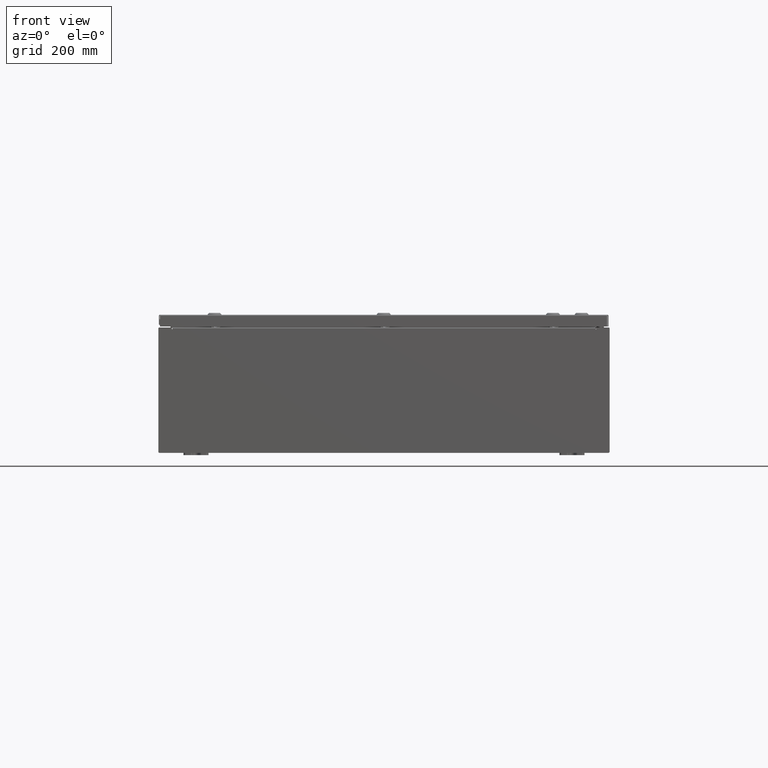
[diagram: clean part render]
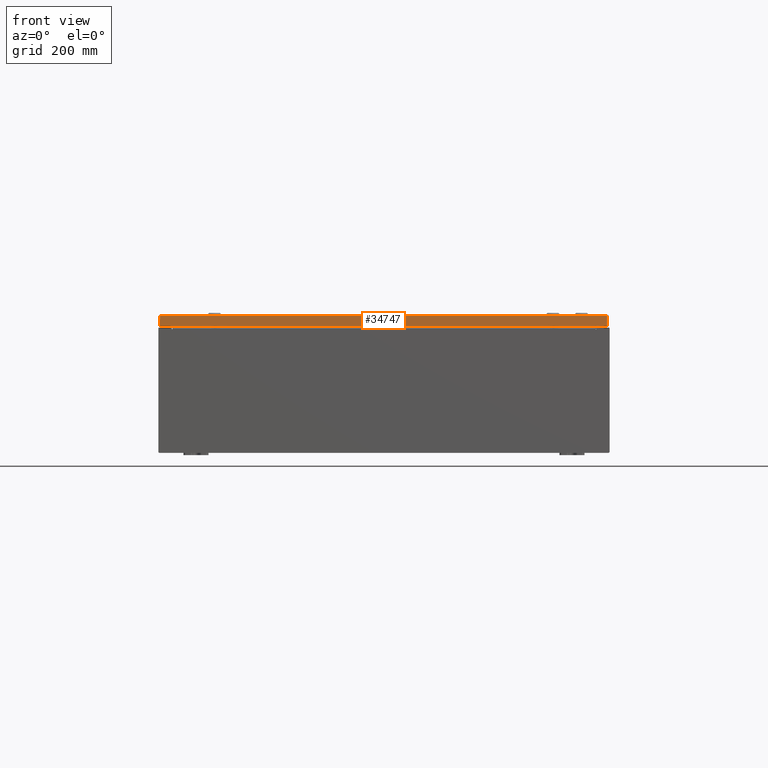
[diagram: same view with one face highlighted and labeled with its STEP entity id]
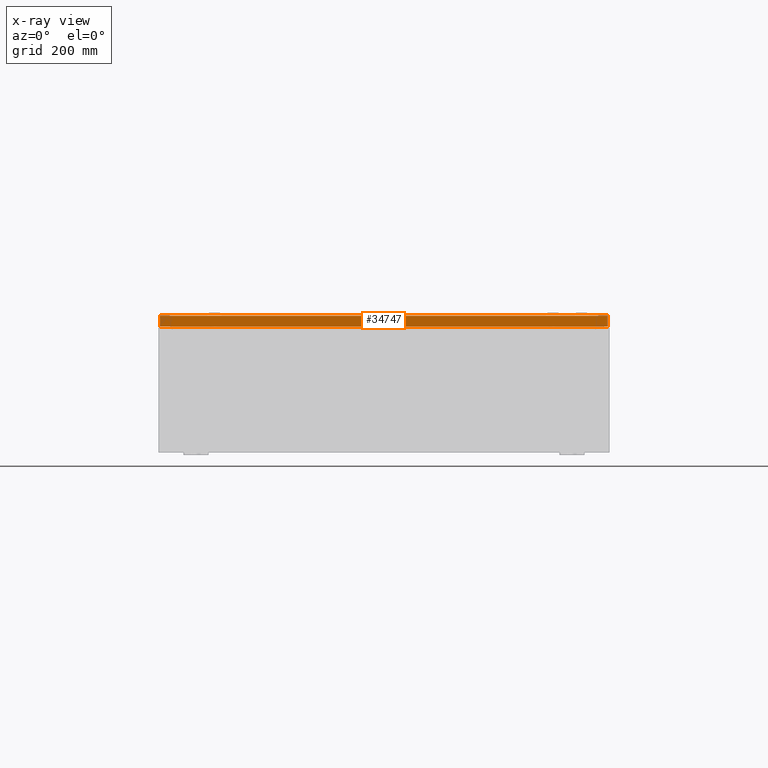
[diagram: x-ray of the same camera — body ghosted, the highlighted face saturated]
A machine part, front view. The second image highlights one B-rep face of the part: STEP entity #34747.
The next image is the same camera in x-ray: the body ghosted, the highlighted face saturated — about 0% of this face is hidden behind the body in this view.
In plain terms, the highlighted planar face has unit normal (-0, 1, -0).
Its self-contained STEP definition (entity closure, byte-faithful):
#3148 = PLANE ( 'NONE',  #30008 ) ;
#6920 = VECTOR ( 'NONE', #13848, 39.37007874015748100 ) ;
#7162 = VERTEX_POINT ( 'NONE', #37571 ) ;
#7636 = LINE ( 'NONE', #24702, #20056 ) ;
#8472 = DIRECTION ( 'NONE',  ( 0.0000000000000000000, 5.064839849203732200E-015, 1.000000000000000000 ) ) ;
#8919 = LINE ( 'NONE', #59382, #63705 ) ;
#10474 = ORIENTED_EDGE ( 'NONE', *, *, #55867, .F. ) ;
#13848 = DIRECTION ( 'NONE',  ( -1.000000000000000000, -8.758115402030108600E-047, 1.218385167906012900E-016 ) ) ;
#17083 = ORIENTED_EDGE ( 'NONE', *, *, #31064, .F. ) ;
#18702 = EDGE_CURVE ( 'NONE', #30866, #7162, #7636, .T. ) ;
#19085 = FACE_OUTER_BOUND ( 'NONE', #24763, .T. ) ;
#20056 = VECTOR ( 'NONE', #30059, 39.37007874015748100 ) ;
#20991 = LINE ( 'NONE', #34956, #6920 ) ;
#23680 = LINE ( 'NONE', #43489, #64381 ) ;
#24702 = CARTESIAN_POINT ( 'NONE',  ( 17.84865786437626400, -20.93750000000000000, -0.07469999999999962800 ) ) ;
#24763 = EDGE_LOOP ( 'NONE', ( #10474, #39938, #17083, #48427 ) ) ;
#30008 = AXIS2_PLACEMENT_3D ( 'NONE', #50663, #40249, #8472 ) ;
#30059 = DIRECTION ( 'NONE',  ( -0.0000000000000000000, -5.064839849203732200E-015, -1.000000000000000000 ) ) ;
#30866 = VERTEX_POINT ( 'NONE', #49128 ) ;
#31064 = EDGE_CURVE ( 'NONE', #7162, #39583, #20991, .T. ) ;
#34747 = ADVANCED_FACE ( 'NONE', ( #19085 ), #3148, .F. ) ;
#34956 = CARTESIAN_POINT ( 'NONE',  ( 17.93749999999999600, -20.93750000000000700, -0.9376999999999997600 ) ) ;
#37571 = CARTESIAN_POINT ( 'NONE',  ( 17.84865786437626400, -20.93750000000000700, -0.9376999999999997600 ) ) ;
#39583 = VERTEX_POINT ( 'NONE', #44733 ) ;
#39938 = ORIENTED_EDGE ( 'NONE', *, *, #53599, .T. ) ;
#40249 = DIRECTION ( 'NONE',  ( -6.170925750089155000E-031, 1.000000000000000000, -5.064839849203732200E-015 ) ) ;
#43489 = CARTESIAN_POINT ( 'NONE',  ( 17.93749999999999600, -20.93750000000000000, -0.08769999999999550400 ) ) ;
#43713 = DIRECTION ( 'NONE',  ( 1.000000000000000000, 6.170925750089155900E-031, -3.189293793798686700E-045 ) ) ;
#44733 = CARTESIAN_POINT ( 'NONE',  ( -17.84865786437627100, -20.93750000000000700, -0.9376999999999954300 ) ) ;
#48427 = ORIENTED_EDGE ( 'NONE', *, *, #18702, .F. ) ;
#49128 = CARTESIAN_POINT ( 'NONE',  ( 17.84865786437626100, -20.93750000000000000, -0.08769999999999550400 ) ) ;
#50663 = CARTESIAN_POINT ( 'NONE',  ( 1.292037578924916800E-029, -20.93750000000000000, 1.063058979987147300E-013 ) ) ;
#53599 = EDGE_CURVE ( 'NONE', #68780, #39583, #8919, .T. ) ;
#54016 = DIRECTION ( 'NONE',  ( 0.0000000000000000000, -5.064839849203732200E-015, -1.000000000000000000 ) ) ;
#55867 = EDGE_CURVE ( 'NONE', #68780, #30866, #23680, .T. ) ;
#59382 = CARTESIAN_POINT ( 'NONE',  ( -17.84865786437627500, -20.93750000000000000, 1.063058979987147300E-013 ) ) ;
#63705 = VECTOR ( 'NONE', #54016, 39.37007874015748100 ) ;
#64381 = VECTOR ( 'NONE', #43713, 39.37007874015748100 ) ;
#64518 = CARTESIAN_POINT ( 'NONE',  ( -17.84865786437627100, -20.93750000000000000, -0.08769999999999550400 ) ) ;
#68780 = VERTEX_POINT ( 'NONE', #64518 ) ;